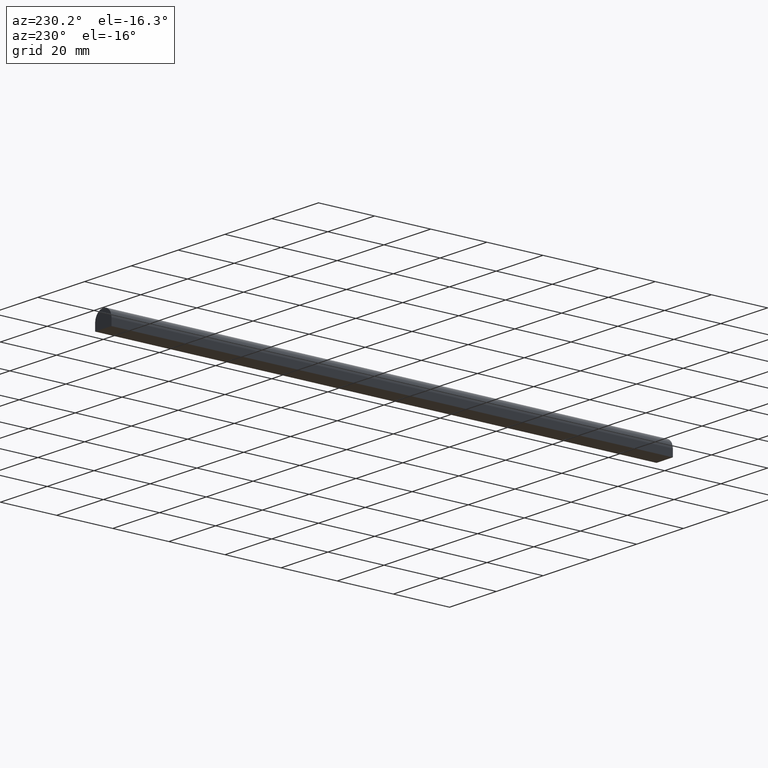
[diagram: clean part render]
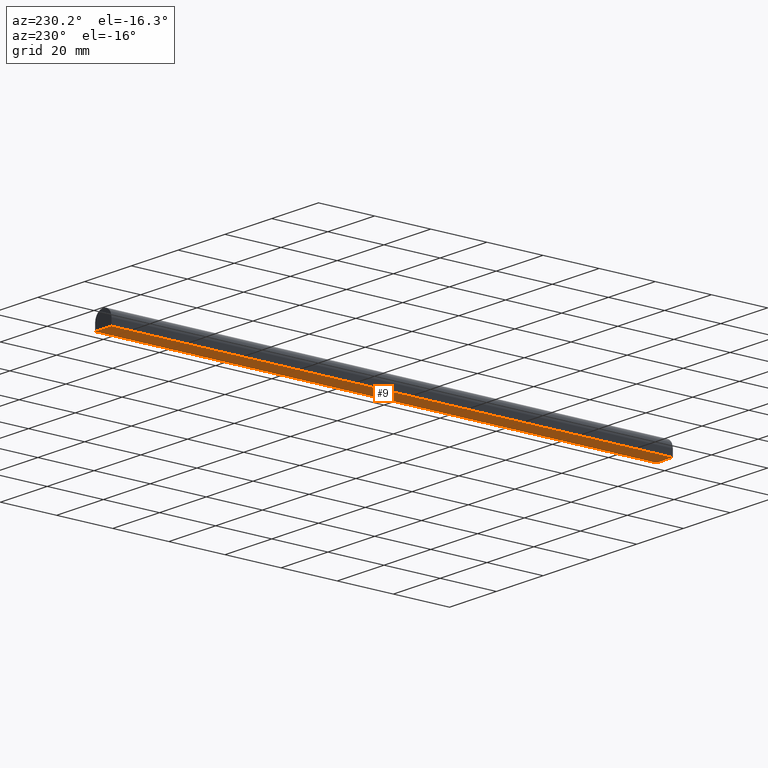
[diagram: same view with one face highlighted and labeled with its STEP entity id]
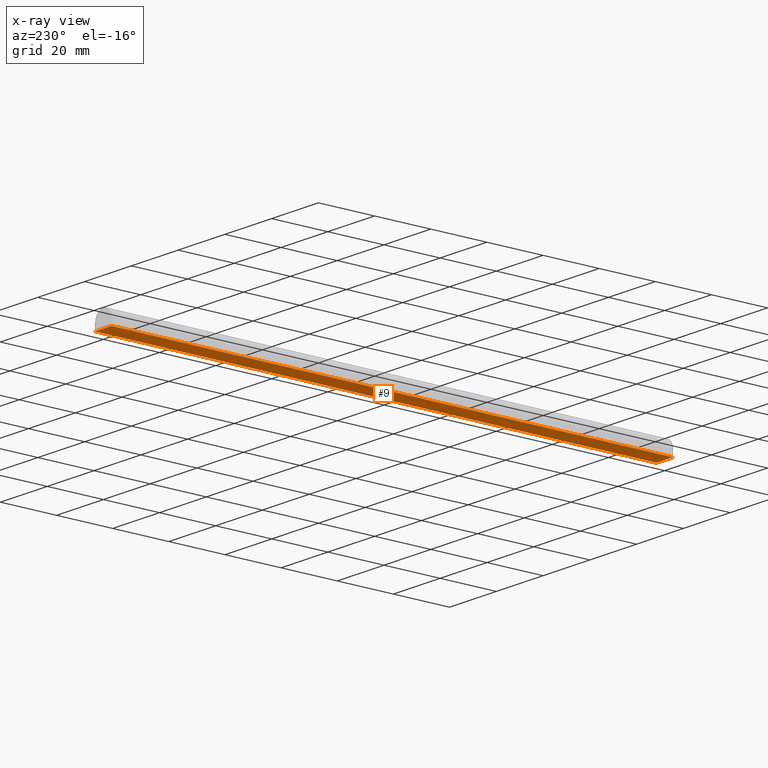
[diagram: x-ray of the same camera — body ghosted, the highlighted face saturated]
A machine part, auxiliary view. The second image highlights one B-rep face of the part: STEP entity #9.
The next image is the same camera in x-ray: the body ghosted, the highlighted face saturated — about 0% of this face is hidden behind the body in this view.
In plain terms, the highlighted planar face has unit normal (0, 0, -1).
Its self-contained STEP definition (entity closure, byte-faithful):
#5 = VERTEX_POINT ( 'NONE', #239 ) ;
#9 = ADVANCED_FACE ( 'NONE', ( #93 ), #216, .T. ) ;
#12 = EDGE_LOOP ( 'NONE', ( #228, #134, #156, #167 ) ) ;
#14 = EDGE_CURVE ( 'NONE', #124, #74, #160, .T. ) ;
#15 = DIRECTION ( 'NONE',  ( 1.000000000000000000, -0.0000000000000000000, -0.0000000000000000000 ) ) ;
#18 = LINE ( 'NONE', #165, #112 ) ;
#21 = VECTOR ( 'NONE', #191, 1000.000000000000000 ) ;
#34 = DIRECTION ( 'NONE',  ( 0.0000000000000000000, -1.000000000000000000, 0.0000000000000000000 ) ) ;
#38 = CARTESIAN_POINT ( 'NONE',  ( -3.500000000000000000, 200.0000000000000000, -3.000000000000000000 ) ) ;
#39 = LINE ( 'NONE', #221, #82 ) ;
#51 = DIRECTION ( 'NONE',  ( 0.0000000000000000000, -1.000000000000000000, 0.0000000000000000000 ) ) ;
#53 = CARTESIAN_POINT ( 'NONE',  ( 3.500000000000000000, 1000.000000000000000, -3.000000000000000000 ) ) ;
#58 = DIRECTION ( 'NONE',  ( 0.0000000000000000000, 0.0000000000000000000, -1.000000000000000000 ) ) ;
#61 = CARTESIAN_POINT ( 'NONE',  ( 0.0000000000000000000, 0.0000000000000000000, -3.000000000000000000 ) ) ;
#74 = VERTEX_POINT ( 'NONE', #104 ) ;
#75 = LINE ( 'NONE', #53, #218 ) ;
#82 = VECTOR ( 'NONE', #15, 1000.000000000000000 ) ;
#93 = FACE_OUTER_BOUND ( 'NONE', #12, .T. ) ;
#104 = CARTESIAN_POINT ( 'NONE',  ( 3.500000000000000000, 0.0000000000000000000, -3.000000000000000000 ) ) ;
#112 = VECTOR ( 'NONE', #34, 1000.000000000000000 ) ;
#124 = VERTEX_POINT ( 'NONE', #230 ) ;
#128 = CARTESIAN_POINT ( 'NONE',  ( -3.500000000000000000, 1000.000000000000000, -3.000000000000000000 ) ) ;
#134 = ORIENTED_EDGE ( 'NONE', *, *, #194, .F. ) ;
#140 = EDGE_CURVE ( 'NONE', #5, #74, #75, .T. ) ;
#149 = VERTEX_POINT ( 'NONE', #38 ) ;
#156 = ORIENTED_EDGE ( 'NONE', *, *, #234, .T. ) ;
#160 = LINE ( 'NONE', #61, #21 ) ;
#165 = CARTESIAN_POINT ( 'NONE',  ( -3.500000000000000000, 1000.000000000000000, -3.000000000000000000 ) ) ;
#167 = ORIENTED_EDGE ( 'NONE', *, *, #140, .T. ) ;
#191 = DIRECTION ( 'NONE',  ( 1.000000000000000000, -0.0000000000000000000, -0.0000000000000000000 ) ) ;
#194 = EDGE_CURVE ( 'NONE', #149, #124, #18, .T. ) ;
#211 = AXIS2_PLACEMENT_3D ( 'NONE', #128, #58, #231 ) ;
#216 = PLANE ( 'NONE',  #211 ) ;
#218 = VECTOR ( 'NONE', #51, 1000.000000000000000 ) ;
#221 = CARTESIAN_POINT ( 'NONE',  ( 0.0000000000000000000, 200.0000000000000000, -3.000000000000000000 ) ) ;
#228 = ORIENTED_EDGE ( 'NONE', *, *, #14, .F. ) ;
#230 = CARTESIAN_POINT ( 'NONE',  ( -3.500000000000000000, 0.0000000000000000000, -3.000000000000000000 ) ) ;
#231 = DIRECTION ( 'NONE',  ( -1.000000000000000000, 0.0000000000000000000, 0.0000000000000000000 ) ) ;
#234 = EDGE_CURVE ( 'NONE', #149, #5, #39, .T. ) ;
#239 = CARTESIAN_POINT ( 'NONE',  ( 3.500000000000000000, 200.0000000000000000, -3.000000000000000000 ) ) ;